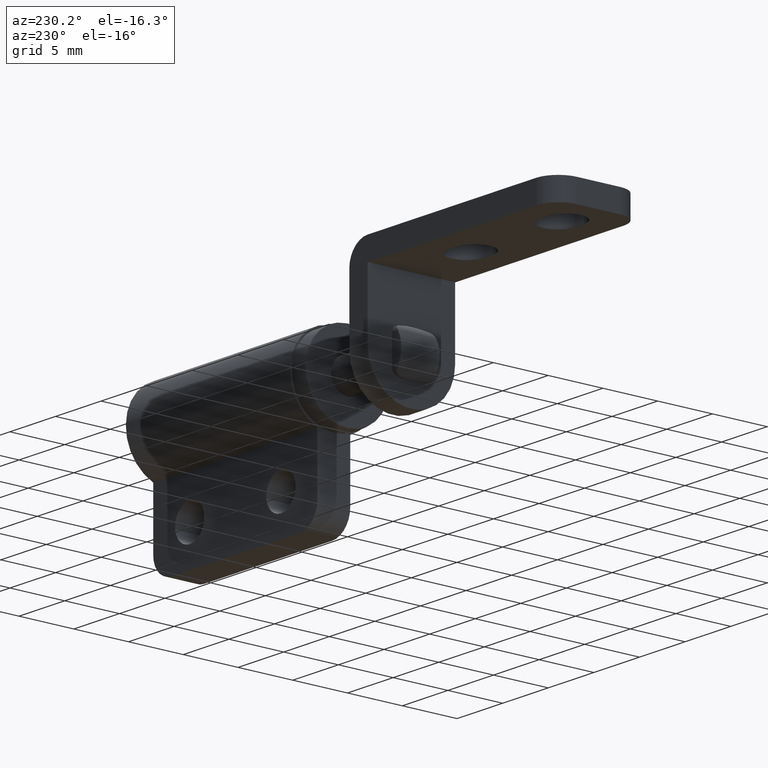
[diagram: clean part render]
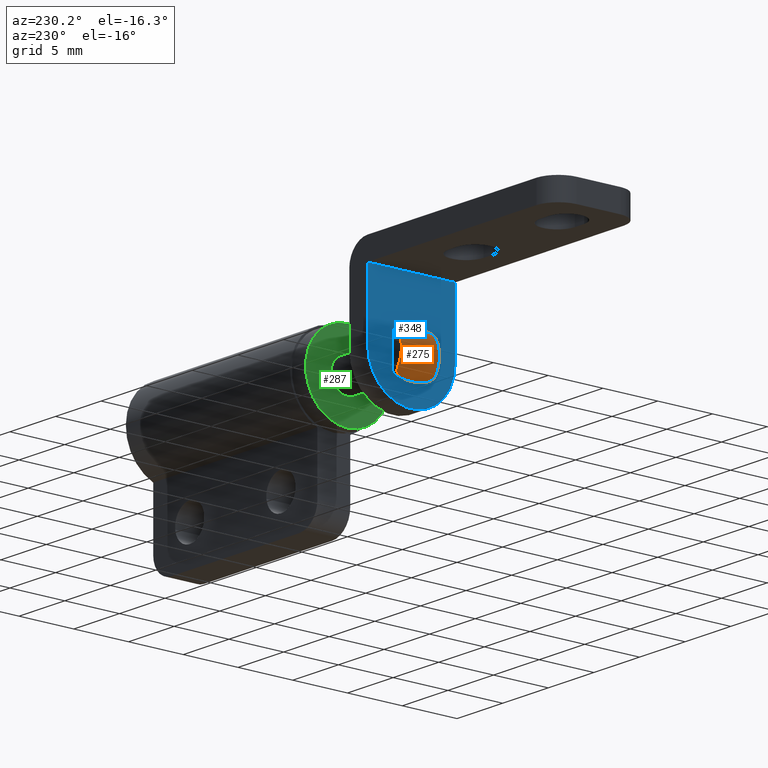
[diagram: same view with three faces highlighted in distinct colors, each labeled with its STEP entity id]
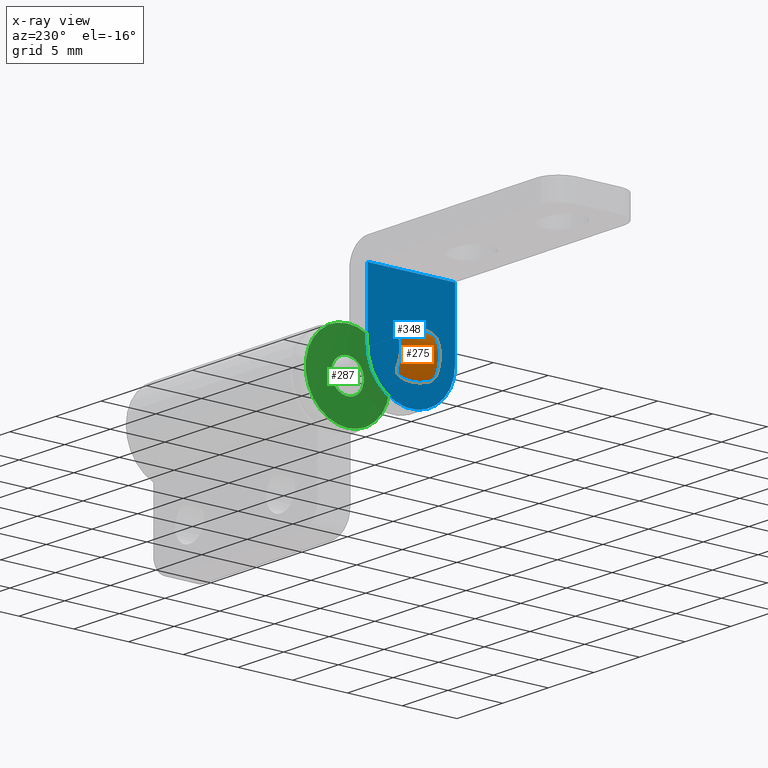
[diagram: x-ray of the same camera — body ghosted, the three highlighted faces saturated]
A machine part, auxiliary view with three faces highlighted in distinct colors.
The next image is the same camera in x-ray (body ghosted, the three faces saturated) — at least one of them is partly hidden behind the body in this view.
Their STEP definitions:

[orange] entity #275 — the highlighted cylindrical surface (edge-blend (fillet) strip) has radius 2.5 mm, axis along (0, 1, 0).
#275=ADVANCED_FACE('',(#512),#511,.T.);
#511=CYLINDRICAL_SURFACE('',#1421,2.50000000000E+00);
#512=FACE_OUTER_BOUND('',#1422,.T.);
#1418=CARTESIAN_POINT('',(-5.00000000000E-01,1.83968750000E+00,5.97723379236E-16));
#1419=DIRECTION('',(3.91300766820E-17,1.00000000000E+00,6.04493308105E-20));
#1420=DIRECTION('',(5.68723184480E-01,-2.22044604925E-17,-8.22528990027E-01));
#1421=AXIS2_PLACEMENT_3D('',#1418,#1419,#1420);
#1422=EDGE_LOOP('',(#1985,#1986,#1987,#1988,#1989,#1990,#1991,#1992,#1993));
#1985=ORIENTED_EDGE('',*,*,#2461,.F.);
#1986=ORIENTED_EDGE('',*,*,#2462,.F.);
#1987=ORIENTED_EDGE('',*,*,#2463,.F.);
#1988=ORIENTED_EDGE('',*,*,#2464,.F.);
#1989=ORIENTED_EDGE('',*,*,#2465,.F.);
#1990=ORIENTED_EDGE('',*,*,#2466,.F.);
#1991=ORIENTED_EDGE('',*,*,#2467,.F.);
#1992=ORIENTED_EDGE('',*,*,#2468,.F.);
#1993=ORIENTED_EDGE('',*,*,#2469,.F.);
#2461=EDGE_CURVE('',#2977,#2978,#2979,.T.);
#2462=EDGE_CURVE('',#2985,#2977,#2986,.T.);
#2463=EDGE_CURVE('',#2992,#2985,#2993,.T.);
#2464=EDGE_CURVE('',#2999,#2992,#3000,.T.);
#2465=EDGE_CURVE('',#3006,#2999,#3007,.T.);
#2466=EDGE_CURVE('',#3013,#3006,#3014,.T.);
#2467=EDGE_CURVE('',#3020,#3013,#3021,.T.);
#2468=EDGE_CURVE('',#3027,#3020,#3028,.T.);
#2469=EDGE_CURVE('',#2978,#3027,#3034,.T.);
#2977=VERTEX_POINT('',#4565);
#2978=VERTEX_POINT('',#4566);
#2979=(BOUNDED_CURVE() B_SPLINE_CURVE(3,(#4567,#4568,#4569,#4570,#4571,#4572,#4573,#4574,#4575,#4576,#4577,#4578,#4579,#4580,#4581,#4582),.UNSPECIFIED.,.F.,.F.) B_SPLINE_CURVE_WITH_KNOTS((4,2,2,2,2,2,2,4),(0.00000000000E+00,1.25000000000E-01,2.50000000000E-01,5.00000000000E-01,6.25000000000E-01,7.50000000000E-01,8.75000000000E-01,1.00000000000E+00),.UNSPECIFIED.) CURVE() GEOMETRIC_REPRESENTATION_ITEM() RATIONAL_B_SPLINE_CURVE((1.00000000000E+00,1.00000000000E+00,1.00000000000E+00,1.00000000000E+00,1.00000000000E+00,1.00000000000E+00,1.00000000000E+00,1.00000000000E+00,1.00000000000E+00,1.00000000000E+00,1.00000000000E+00,1.00000000000E+00,1.00000000000E+00,1.00000000000E+00,1.00000000000E+00,1.00000000000E+00)) REPRESENTATION_ITEM('') );
#2985=VERTEX_POINT('',#4583);
#2986=(BOUNDED_CURVE() B_SPLINE_CURVE(3,(#4584,#4585,#4586,#4587),.UNSPECIFIED.,.F.,.F.) B_SPLINE_CURVE_WITH_KNOTS((4,4),(4.99688324863E-01,1.00000000000E+00),.UNSPECIFIED.) CURVE() GEOMETRIC_REPRESENTATION_ITEM() RATIONAL_B_SPLINE_CURVE((1.00000000000E+00,1.00000000000E+00,1.00000000000E+00,1.00000000000E+00)) REPRESENTATION_ITEM('') );
#2992=VERTEX_POINT('',#4588);
#2993=(BOUNDED_CURVE() B_SPLINE_CURVE(3,(#4589,#4590,#4591,#4592,#4593,#4594,#4595,#4596,#4597,#4598),.UNSPECIFIED.,.F.,.F.) B_SPLINE_CURVE_WITH_KNOTS((4,2,2,2,4),(2.67062268000E-07,2.50000000000E-01,3.75000000000E-01,4.37500000000E-01,4.99688324918E-01),.UNSPECIFIED.) CURVE() GEOMETRIC_REPRESENTATION_ITEM() RATIONAL_B_SPLINE_CURVE((1.00000000000E+00,1.00000000000E+00,1.00000000000E+00,1.00000000000E+00,1.00000000000E+00,1.00000000000E+00,1.00000000000E+00,1.00000000000E+00,1.00000000000E+00,1.00000000000E+00)) REPRESENTATION_ITEM('') );
#2999=VERTEX_POINT('',#4599);
#3000=(BOUNDED_CURVE() B_SPLINE_CURVE(3,(#4600,#4601,#4602,#4603,#4604,#4605,#4606,#4607,#4608,#4609,#4610,#4611,#4612,#4613,#4614,#4615),.UNSPECIFIED.,.F.,.F.) B_SPLINE_CURVE_WITH_KNOTS((4,2,2,2,2,2,2,4),(0.00000000000E+00,2.50000000000E-01,3.75000000000E-01,5.00000000000E-01,6.25000000000E-01,7.50000000000E-01,8.75000000000E-01,1.00000000000E+00),.UNSPECIFIED.) CURVE() GEOMETRIC_REPRESENTATION_ITEM() RATIONAL_B_SPLINE_CURVE((1.00000000000E+00,1.00000000000E+00,1.00000000000E+00,1.00000000000E+00,1.00000000000E+00,1.00000000000E+00,1.00000000000E+00,1.00000000000E+00,1.00000000000E+00,1.00000000000E+00,1.00000000000E+00,1.00000000000E+00,1.00000000000E+00,1.00000000000E+00,1.00000000000E+00,1.00000000000E+00)) REPRESENTATION_ITEM('') );
#3006=VERTEX_POINT('',#4616);
#3007=CIRCLE('',#4620,2.50000000000E+00);
#3013=VERTEX_POINT('',#4621);
#3014=(BOUNDED_CURVE() B_SPLINE_CURVE(3,(#4622,#4623,#4624,#4625,#4626,#4627,#4628,#4629,#4630,#4631,#4632,#4633,#4634,#4635,#4636,#4637),.UNSPECIFIED.,.F.,.F.) B_SPLINE_CURVE_WITH_KNOTS((4,2,2,2,2,2,2,4),(0.00000000000E+00,1.25000000000E-01,2.50000000000E-01,5.00000000000E-01,6.25000000000E-01,7.50000000000E-01,8.75000000000E-01,1.00000000000E+00),.UNSPECIFIED.) CURVE() GEOMETRIC_REPRESENTATION_ITEM() RATIONAL_B_SPLINE_CURVE((1.00000000000E+00,1.00000000000E+00,1.00000000000E+00,1.00000000000E+00,1.00000000000E+00,1.00000000000E+00,1.00000000000E+00,1.00000000000E+00,1.00000000000E+00,1.00000000000E+00,1.00000000000E+00,1.00000000000E+00,1.00000000000E+00,1.00000000000E+00,1.00000000000E+00,1.00000000000E+00)) REPRESENTATION_ITEM('') );
#3020=VERTEX_POINT('',#4638);
#3021=(BOUNDED_CURVE() B_SPLINE_CURVE(3,(#4639,#4640,#4641,#4642,#4643,#4644,#4645,#4646,#4647,#4648,#4649,#4650,#4651,#4652,#4653,#4654),.UNSPECIFIED.,.F.,.F.) B_SPLINE_CURVE_WITH_KNOTS((4,2,2,2,2,2,2,4),(0.00000000000E+00,2.50000000000E-01,3.75000000000E-01,4.37500000000E-01,5.00000000000E-01,7.50000000000E-01,8.75000000000E-01,1.00000000000E+00),.UNSPECIFIED.) CURVE() GEOMETRIC_REPRESENTATION_ITEM() RATIONAL_B_SPLINE_CURVE((1.00000000000E+00,1.00000000000E+00,1.00000000000E+00,1.00000000000E+00,1.00000000000E+00,1.00000000000E+00,1.00000000000E+00,1.00000000000E+00,1.00000000000E+00,1.00000000000E+00,1.00000000000E+00,1.00000000000E+00,1.00000000000E+00,1.00000000000E+00,1.00000000000E+00,1.00000000000E+00)) REPRESENTATION_ITEM('') );
#3027=VERTEX_POINT('',#4655);
#3028=(BOUNDED_CURVE() B_SPLINE_CURVE(3,(#4656,#4657,#4658,#4659,#4660,#4661,#4662,#4663,#4664,#4665,#4666,#4667,#4668,#4669,#4670,#4671),.UNSPECIFIED.,.F.,.F.) B_SPLINE_CURVE_WITH_KNOTS((4,2,2,2,2,2,2,4),(0.00000000000E+00,2.50000000000E-01,3.75000000000E-01,5.00000000000E-01,6.25000000000E-01,7.50000000000E-01,8.75000000000E-01,1.00000000000E+00),.UNSPECIFIED.) CURVE() GEOMETRIC_REPRESENTATION_ITEM() RATIONAL_B_SPLINE_CURVE((1.00000000000E+00,1.00000000000E+00,1.00000000000E+00,1.00000000000E+00,1.00000000000E+00,1.00000000000E+00,1.00000000000E+00,1.00000000000E+00,1.00000000000E+00,1.00000000000E+00,1.00000000000E+00,1.00000000000E+00,1.00000000000E+00,1.00000000000E+00,1.00000000000E+00,1.00000000000E+00)) REPRESENTATION_ITEM('') );
#3034=CIRCLE('',#4675,2.50000000000E+00);
#4565=CARTESIAN_POINT('',(-2.23158090523E+00,1.38888822662E+00,-1.80322698755E+00));
#4566=CARTESIAN_POINT('',(-2.62130079653E+00,1.75000000000E+00,-1.32290700000E+00));
#4567=CARTESIAN_POINT('',(-2.23158090523E+00,1.38888822662E+00,-1.80322698755E+00));
#4568=CARTESIAN_POINT('',(-2.24045058317E+00,1.41834361737E+00,-1.79470974318E+00));
#4569=CARTESIAN_POINT('',(-2.25155913874E+00,1.44566779985E+00,-1.78391796300E+00));
#4570=CARTESIAN_POINT('',(-2.27700765731E+00,1.49701279747E+00,-1.75856949960E+00));
#4571=CARTESIAN_POINT('',(-2.29147229009E+00,1.52117908577E+00,-1.74388362093E+00));
#4572=CARTESIAN_POINT('',(-2.33795125322E+00,1.58821580318E+00,-1.69527174462E+00));
#4573=CARTESIAN_POINT('',(-2.37213748860E+00,1.62495417349E+00,-1.65776148680E+00));
#4574=CARTESIAN_POINT('',(-2.42585273657E+00,1.67072909668E+00,-1.59432113252E+00));
#4575=CARTESIAN_POINT('',(-2.44401181985E+00,1.68420420367E+00,-1.57215430801E+00));
#4576=CARTESIAN_POINT('',(-2.48015241146E+00,1.70744398500E+00,-1.52638379767E+00));
#4577=CARTESIAN_POINT('',(-2.49821367043E+00,1.71727446480E+00,-1.50268756704E+00));
#4578=CARTESIAN_POINT('',(-2.53421789912E+00,1.73331374988E+00,-1.45357668985E+00));
#4579=CARTESIAN_POINT('',(-2.55222829600E+00,1.73952254868E+00,-1.42805428322E+00));
#4580=CARTESIAN_POINT('',(-2.58733452271E+00,1.74784028850E+00,-1.37623194869E+00));
#4581=CARTESIAN_POINT('',(-2.60451150262E+00,1.74999991748E+00,-1.34982893661E+00));
#4582=CARTESIAN_POINT('',(-2.62130079653E+00,1.75000000000E+00,-1.32290700000E+00));
#4583=CARTESIAN_POINT('',(-2.00000000000E+00,0.00000000000E+00,-2.00000000000E+00));
#4584=CARTESIAN_POINT('',(-2.00000000000E+00,0.00000000000E+00,-2.00000000000E+00));
#4585=CARTESIAN_POINT('',(-1.99845599789E+00,4.78586863123E-01,-2.00030378971E+00));
#4586=CARTESIAN_POINT('',(-2.09851783254E+00,9.50004365431E-01,-1.93039280121E+00));
#4587=CARTESIAN_POINT('',(-2.23158090523E+00,1.38888822662E+00,-1.80322698755E+00));
#4588=CARTESIAN_POINT('',(-2.23157827762E+00,-1.38888947282E+00,-1.80322951076E+00));
#4589=CARTESIAN_POINT('',(-2.23157827762E+00,-1.38888947282E+00,-1.80322951076E+00));
#4590=CARTESIAN_POINT('',(-2.16480965008E+00,-1.16715462948E+00,-1.86734527231E+00));
#4591=CARTESIAN_POINT('',(-2.10662194911E+00,-9.41406404543E-01,-1.91613586361E+00));
#4592=CARTESIAN_POINT('',(-2.04462370451E+00,-5.94395502266E-01,-1.96591984295E+00));
#4593=CARTESIAN_POINT('',(-2.02819750750E+00,-4.77318055850E-01,-1.97858810309E+00));
#4594=CARTESIAN_POINT('',(-2.01142653929E+00,-2.99262459232E-01,-1.99139140033E+00));
#4595=CARTESIAN_POINT('',(-2.00714567592E+00,-2.39504076634E-01,-1.99462406067E+00));
#4596=CARTESIAN_POINT('',(-2.00142588014E+00,-1.19423794847E-01,-1.99893303031E+00));
#4597=CARTESIAN_POINT('',(-1.99999998683E+00,-5.95174954610E-02,-2.00000005577E+00));
#4598=CARTESIAN_POINT('',(-2.00000000000E+00,0.00000000000E+00,-2.00000000000E+00));
#4599=CARTESIAN_POINT('',(-2.62130079653E+00,-1.75000000000E+00,-1.32290700000E+00));
#4600=CARTESIAN_POINT('',(-2.62130079653E+00,-1.75000000000E+00,-1.32290700000E+00));
#4601=CARTESIAN_POINT('',(-2.58766887132E+00,-1.75000000000E+00,-1.37683628584E+00));
#4602=CARTESIAN_POINT('',(-2.55284659411E+00,-1.74150949572E+00,-1.42811224478E+00));
#4603=CARTESIAN_POINT('',(-2.49905695803E+00,-1.71770115937E+00,-1.50156325514E+00));
#4604=CARTESIAN_POINT('',(-2.48073910553E+00,-1.70778973690E+00,-1.52562555155E+00));
#4605=CARTESIAN_POINT('',(-2.44439131174E+00,-1.68448161151E+00,-1.57168799529E+00));
#4606=CARTESIAN_POINT('',(-2.42639738502E+00,-1.67114095939E+00,-1.59365829598E+00));
#4607=CARTESIAN_POINT('',(-2.39093693016E+00,-1.64102893010E+00,-1.63557671036E+00));
#4608=CARTESIAN_POINT('',(-2.37346808732E+00,-1.62426169385E+00,-1.65552585162E+00));
#4609=CARTESIAN_POINT('',(-2.33935507350E+00,-1.58687074304E+00,-1.69334622365E+00));
#4610=CARTESIAN_POINT('',(-2.32276827963E+00,-1.56626605217E+00,-1.71114396332E+00));
#4611=CARTESIAN_POINT('',(-2.29193590408E+00,-1.52190616707E+00,-1.74340574168E+00));
#4612=CARTESIAN_POINT('',(-2.27755291179E+00,-1.49802708606E+00,-1.75802128763E+00));
#4613=CARTESIAN_POINT('',(-2.25169227477E+00,-1.44603209125E+00,-1.78379017166E+00));
#4614=CARTESIAN_POINT('',(-2.24043696184E+00,-1.41830820515E+00,-1.79472282591E+00));
#4615=CARTESIAN_POINT('',(-2.23157827762E+00,-1.38888947282E+00,-1.80322951076E+00));
#4616=CARTESIAN_POINT('',(-2.62131077453E+00,-1.75000000000E+00,1.32289100000E+00));
#4617=CARTESIAN_POINT('',(-5.00000000000E-01,-1.75000000000E+00,-4.43852633548E-14));
#4618=DIRECTION('',(1.83311083227E-14,-1.00000000000E+00,1.12671113962E-14));
#4619=DIRECTION('',(8.48524309810E-01,9.59232693276E-15,-5.29156400000E-01));
#4620=AXIS2_PLACEMENT_3D('',#4617,#4618,#4619);
#4621=CARTESIAN_POINT('',(-2.23158714817E+00,-1.38888627848E+00,1.80322099264E+00));
#4622=CARTESIAN_POINT('',(-2.23158714817E+00,-1.38888627848E+00,1.80322099264E+00));
#4623=CARTESIAN_POINT('',(-2.24045671817E+00,-1.41834216628E+00,1.79470377069E+00));
#4624=CARTESIAN_POINT('',(-2.25156525531E+00,-1.44566679792E+00,1.78391191054E+00));
#4625=CARTESIAN_POINT('',(-2.27701386676E+00,-1.49701262130E+00,1.75856312526E+00));
#4626=CARTESIAN_POINT('',(-2.29147862444E+00,-1.52117930377E+00,1.74387698911E+00));
#4627=CARTESIAN_POINT('',(-2.33795801615E+00,-1.58821694770E+00,1.69526422446E+00));
#4628=CARTESIAN_POINT('',(-2.37214467802E+00,-1.62495574064E+00,1.65775316058E+00));
#4629=CARTESIAN_POINT('',(-2.42586068594E+00,-1.67073102534E+00,1.59431127060E+00));
#4630=CARTESIAN_POINT('',(-2.44401995362E+00,-1.68420613657E+00,1.57214398909E+00));
#4631=CARTESIAN_POINT('',(-2.48016098364E+00,-1.70744588018E+00,1.52637242553E+00));
#4632=CARTESIAN_POINT('',(-2.49822246794E+00,-1.71727629175E+00,1.50267563115E+00));
#4633=CARTESIAN_POINT('',(-2.53422715645E+00,-1.73331531615E+00,1.45356353827E+00));
#4634=CARTESIAN_POINT('',(-2.55223774958E+00,-1.73952390232E+00,1.42804052929E+00));
#4635=CARTESIAN_POINT('',(-2.58734426144E+00,-1.74784106935E+00,1.37621708619E+00));
#4636=CARTESIAN_POINT('',(-2.60452136881E+00,-1.75000034844E+00,1.34981351081E+00));
#4637=CARTESIAN_POINT('',(-2.62131077453E+00,-1.75000000000E+00,1.32289100000E+00));
#4638=CARTESIAN_POINT('',(-2.23158721128E+00,1.38888648806E+00,1.80322093203E+00));
#4639=CARTESIAN_POINT('',(-2.23158721128E+00,1.38888648806E+00,1.80322093203E+00));
#4640=CARTESIAN_POINT('',(-2.16481977980E+00,1.16715152391E+00,1.86733599882E+00));
#4641=CARTESIAN_POINT('',(-2.10663331699E+00,9.41403465347E-01,1.91612608535E+00));
#4642=CARTESIAN_POINT('',(-2.04463637628E+00,5.94393080922E-01,1.96590969087E+00));
#4643=CARTESIAN_POINT('',(-2.02821052930E+00,4.77315955915E-01,1.97857788231E+00));
#4644=CARTESIAN_POINT('',(-2.01143983758E+00,2.99260972589E-01,1.99138119956E+00));
#4645=CARTESIAN_POINT('',(-2.00715902481E+00,2.39502816328E-01,1.99461388723E+00));
#4646=CARTESIAN_POINT('',(-2.00142493343E+00,1.19122879732E-01,1.99893372939E+00));
#4647=CARTESIAN_POINT('',(-1.99999902956E+00,5.89164794817E-02,2.00000072791E+00));
#4648=CARTESIAN_POINT('',(-2.00007041526E+00,-2.40141709812E-01,1.99994718790E+00));
#4649=CARTESIAN_POINT('',(-2.02350831356E+00,-4.75114514799E-01,1.98285372814E+00));
#4650=CARTESIAN_POINT('',(-2.08526350339E+00,-8.22290586891E-01,1.93329673020E+00));
#4651=CARTESIAN_POINT('',(-2.11019149827E+00,-9.37143655972E-01,1.91276891588E+00));
#4652=CARTESIAN_POINT('',(-2.16674447587E+00,-1.16533365265E+00,1.86369644493E+00));
#4653=CARTESIAN_POINT('',(-2.19818007512E+00,-1.27794121629E+00,1.83530095321E+00));
#4654=CARTESIAN_POINT('',(-2.23158714817E+00,-1.38888627848E+00,1.80322099264E+00));
#4655=CARTESIAN_POINT('',(-2.62131077453E+00,1.75000000000E+00,1.32289100000E+00));
#4656=CARTESIAN_POINT('',(-2.62131077453E+00,1.75000000000E+00,1.32289100000E+00));
#4657=CARTESIAN_POINT('',(-2.58767885599E+00,1.75000071917E+00,1.37682118106E+00));
#4658=CARTESIAN_POINT('',(-2.55285650395E+00,1.74151062105E+00,1.42809803421E+00));
#4659=CARTESIAN_POINT('',(-2.49906663366E+00,1.71770252389E+00,1.50155038192E+00));
#4660=CARTESIAN_POINT('',(-2.48074867586E+00,1.70779111105E+00,1.52561313329E+00));
#4661=CARTESIAN_POINT('',(-2.44440070610E+00,1.68448291894E+00,1.57167638002E+00));
#4662=CARTESIAN_POINT('',(-2.42640668175E+00,1.67114217689E+00,1.59364706408E+00));
#4663=CARTESIAN_POINT('',(-2.39094601819E+00,1.64102984948E+00,1.63556620919E+00));
#4664=CARTESIAN_POINT('',(-2.37347706410E+00,1.62426240546E+00,1.65551569790E+00));
#4665=CARTESIAN_POINT('',(-2.33936382518E+00,1.58687089255E+00,1.69333672208E+00));
#4666=CARTESIAN_POINT('',(-2.32277699895E+00,1.56626594428E+00,1.71113467738E+00));
#4667=CARTESIAN_POINT('',(-2.29194455026E+00,1.52190539185E+00,1.74339685695E+00));
#4668=CARTESIAN_POINT('',(-2.27756152954E+00,1.49802591037E+00,1.75801257498E+00));
#4669=CARTESIAN_POINT('',(-2.25170089758E+00,1.44602990568E+00,1.78378170484E+00));
#4670=CARTESIAN_POINT('',(-2.24044573679E+00,1.41830569431E+00,1.79471431523E+00));
#4671=CARTESIAN_POINT('',(-2.23158721128E+00,1.38888648806E+00,1.80322093203E+00));
#4672=CARTESIAN_POINT('',(-5.00000000000E-01,1.75000000000E+00,-9.66083427991E-16));
#4673=DIRECTION('',(-3.15778486522E-13,1.00000000000E+00,-2.19578368938E-13));
#4674=DIRECTION('',(8.48520318611E-01,3.84137166520E-13,5.29162800000E-01));
#4675=AXIS2_PLACEMENT_3D('',#4672,#4673,#4674);

[blue] entity #348 — the highlighted planar face has unit normal (-1, 0, 0).
#348=ADVANCED_FACE('',(#1253,#1254),#1252,.T.);
#1252=PLANE('',#1865);
#1253=FACE_OUTER_BOUND('',#1866,.T.);
#1254=FACE_BOUND('',#1867,.T.);
#1862=CARTESIAN_POINT('',(-2.00000000000E+00,-4.80000006981E+00,7.00000883491E+00));
#1863=DIRECTION('',(-1.00000000000E+00,0.00000000000E+00,0.00000000000E+00));
#1864=DIRECTION('',(0.00000000000E+00,1.00000000000E+00,0.00000000000E+00));
#1865=AXIS2_PLACEMENT_3D('',#1862,#1863,#1864);
#1866=EDGE_LOOP('',(#2350,#2351,#2352,#2353));
#1867=EDGE_LOOP('',(#2354,#2355,#2356,#2357));
#2350=ORIENTED_EDGE('',*,*,#2655,.F.);
#2351=ORIENTED_EDGE('',*,*,#2656,.F.);
#2352=ORIENTED_EDGE('',*,*,#2657,.F.);
#2353=ORIENTED_EDGE('',*,*,#2658,.F.);
#2354=ORIENTED_EDGE('',*,*,#2650,.T.);
#2355=ORIENTED_EDGE('',*,*,#2653,.F.);
#2356=ORIENTED_EDGE('',*,*,#2643,.T.);
#2357=ORIENTED_EDGE('',*,*,#2647,.F.);
#2643=EDGE_CURVE('',#4192,#4193,#4194,.T.);
#2647=EDGE_CURVE('',#4220,#4193,#4221,.T.);
#2650=EDGE_CURVE('',#4220,#4240,#4241,.T.);
#2653=EDGE_CURVE('',#4192,#4240,#4260,.T.);
#2655=EDGE_CURVE('',#4272,#4273,#4274,.T.);
#2656=EDGE_CURVE('',#4280,#4272,#4281,.T.);
#2657=EDGE_CURVE('',#4287,#4280,#4288,.T.);
#2658=EDGE_CURVE('',#4273,#4287,#4294,.T.);
#4192=VERTEX_POINT('',#5480);
#4193=VERTEX_POINT('',#5481);
#4194=CIRCLE('',#5485,1.52500000000E+00);
#4220=VERTEX_POINT('',#5498);
#4221=LINE('',#5499,#5500);
#4240=VERTEX_POINT('',#5509);
#4241=CIRCLE('',#5513,1.52500000000E+00);
#4260=LINE('',#5522,#5523);
#4272=VERTEX_POINT('',#5528);
#4273=VERTEX_POINT('',#5529);
#4274=LINE('',#5530,#5531);
#4280=VERTEX_POINT('',#5533);
#4281=CIRCLE('',#5537,4.00000000000E+00);
#4287=VERTEX_POINT('',#5538);
#4288=LINE('',#5539,#5540);
#4294=LINE('',#5542,#5543);
#5480=CARTESIAN_POINT('',(-2.00000000000E+00,-1.12500000000E+00,-1.02956301410E+00));
#5481=CARTESIAN_POINT('',(-2.00000000000E+00,1.12500000000E+00,-1.02956301410E+00));
#5482=CARTESIAN_POINT('',(-2.00000000000E+00,-1.10454144638E-16,-2.22044604925E-16));
#5483=DIRECTION('',(1.00000000000E+00,0.00000000000E+00,0.00000000000E+00));
#5484=DIRECTION('',(-0.00000000000E+00,7.37704918033E-01,6.75123287934E-01));
#5485=AXIS2_PLACEMENT_3D('',#5482,#5483,#5484);
#5498=CARTESIAN_POINT('',(-2.00000000000E+00,1.12500000000E+00,1.02956301410E+00));
#5499=CARTESIAN_POINT('',(-2.00000000000E+00,1.12500000000E+00,1.02956301410E+00));
#5500=VECTOR('',#5501,2.05912602820E+00);
#5501=DIRECTION('',(0.00000000000E+00,8.35716544109E-14,-1.00000000000E+00));
#5509=CARTESIAN_POINT('',(-2.00000000000E+00,-1.12500000000E+00,1.02956301410E+00));
#5510=CARTESIAN_POINT('',(-2.00000000000E+00,0.00000000000E+00,0.00000000000E+00));
#5511=DIRECTION('',(1.00000000000E+00,0.00000000000E+00,-0.00000000000E+00));
#5512=DIRECTION('',(-0.00000000000E+00,-7.37704918033E-01,-6.75123287934E-01));
#5513=AXIS2_PLACEMENT_3D('',#5510,#5511,#5512);
#5522=CARTESIAN_POINT('',(-2.00000000000E+00,-1.12500000000E+00,-1.02956301410E+00));
#5523=VECTOR('',#5524,2.05912602820E+00);
#5524=DIRECTION('',(0.00000000000E+00,0.00000000000E+00,1.00000000000E+00));
#5528=CARTESIAN_POINT('',(-2.00000000000E+00,4.00000000000E+00,6.98131700000E-07));
#5529=CARTESIAN_POINT('',(-2.00000000000E+00,4.00000000000E+00,6.00000800000E+00));
#5530=CARTESIAN_POINT('',(-2.00000000000E+00,4.00000000000E+00,6.98131700000E-07));
#5531=VECTOR('',#5532,6.00000730187E+00);
#5532=DIRECTION('',(0.00000000000E+00,9.99199506159E-15,1.00000000000E+00));
#5533=CARTESIAN_POINT('',(-2.00000000000E+00,-4.00000000000E+00,-2.44921300000E-16));
#5534=CARTESIAN_POINT('',(-2.00000000000E+00,5.75511886728E-14,-5.78710479674E-14));
#5535=DIRECTION('',(1.00000000000E+00,0.00000000000E+00,0.00000000000E+00));
#5536=DIRECTION('',(0.00000000000E+00,-1.00000000000E+00,1.45289923022E-14));
#5537=AXIS2_PLACEMENT_3D('',#5534,#5535,#5536);
#5538=CARTESIAN_POINT('',(-2.00000000000E+00,-4.00000000000E+00,6.00000800000E+00));
#5539=CARTESIAN_POINT('',(-2.00000000000E+00,-4.00000000000E+00,6.00000800000E+00));
#5540=VECTOR('',#5541,6.00000800000E+00);
#5541=DIRECTION('',(0.00000000000E+00,0.00000000000E+00,-1.00000000000E+00));
#5542=CARTESIAN_POINT('',(-2.00000000000E+00,4.00000000000E+00,6.00000800000E+00));
#5543=VECTOR('',#5544,8.00000000000E+00);
#5544=DIRECTION('',(0.00000000000E+00,-1.00000000000E+00,0.00000000000E+00));

[green] entity #287 — the highlighted planar face has unit normal (-1, 0, 0).
#287=ADVANCED_FACE('',(#634,#635),#633,.T.);
#633=PLANE('',#1515);
#634=FACE_OUTER_BOUND('',#1516,.T.);
#635=FACE_BOUND('',#1517,.T.);
#1512=CARTESIAN_POINT('',(5.00000000705E+00,-7.95471335926E+00,-8.80259047365E+00));
#1513=DIRECTION('',(-1.00000000000E+00,0.00000000000E+00,0.00000000000E+00));
#1514=DIRECTION('',(0.00000000000E+00,0.00000000000E+00,1.00000000000E+00));
#1515=AXIS2_PLACEMENT_3D('',#1512,#1513,#1514);
#1516=EDGE_LOOP('',(#2046));
#1517=EDGE_LOOP('',(#2047,#2048,#2049));
#2046=ORIENTED_EDGE('',*,*,#2495,.T.);
#2047=ORIENTED_EDGE('',*,*,#2496,.F.);
#2048=ORIENTED_EDGE('',*,*,#2497,.F.);
#2049=ORIENTED_EDGE('',*,*,#2498,.F.);
#2495=EDGE_CURVE('',#3204,#3204,#3205,.T.);
#2496=EDGE_CURVE('',#3211,#3212,#3213,.T.);
#2497=EDGE_CURVE('',#3219,#3211,#3220,.T.);
#2498=EDGE_CURVE('',#3212,#3219,#3226,.T.);
#3204=VERTEX_POINT('',#4776);
#3205=CIRCLE('',#4780,3.82721324941E+00);
#3211=VERTEX_POINT('',#4781);
#3212=VERTEX_POINT('',#4782);
#3213=CIRCLE('',#4786,1.50000799994E+00);
#3219=VERTEX_POINT('',#4787);
#3220=CIRCLE('',#4791,1.50000799994E+00);
#3226=CIRCLE('',#4795,1.50000799994E+00);
#4776=CARTESIAN_POINT('',(5.00000001409E+00,-4.68682966267E-16,3.82721324941E+00));
#4777=CARTESIAN_POINT('',(5.00000001409E+00,0.00000000000E+00,0.00000000000E+00));
#4778=DIRECTION('',(-1.00000000000E+00,0.00000000000E+00,-0.00000000000E+00));
#4779=DIRECTION('',(-0.00000000000E+00,-0.00000000000E+00,1.00000000000E+00));
#4780=AXIS2_PLACEMENT_3D('',#4777,#4778,#4779);
#4781=CARTESIAN_POINT('',(5.00000000000E+00,4.73994737565E-01,-1.42314896917E+00));
#4782=CARTESIAN_POINT('',(5.00000000000E+00,-1.49960108653E+00,-3.49368170925E-02));
#4783=CARTESIAN_POINT('',(5.00000000000E+00,-1.00085217891E-11,6.17279560799E-11));
#4784=DIRECTION('',(-1.00000000000E+00,-2.15026055940E-15,1.15611346617E-15));
#4785=DIRECTION('',(2.12275010968E-15,-9.99728725833E-01,-2.32910872180E-02));
#4786=AXIS2_PLACEMENT_3D('',#4783,#4784,#4785);
#4787=CARTESIAN_POINT('',(5.00000000000E+00,-4.74210670858E-01,1.42307703225E+00));
#4788=CARTESIAN_POINT('',(5.00000000000E+00,-1.00085217891E-11,6.17279560799E-11));
#4789=DIRECTION('',(-1.00000000000E+00,-2.15026055940E-15,1.15611346617E-15));
#4790=DIRECTION('',(2.12275010968E-15,-9.99728725833E-01,-2.32910872180E-02));
#4791=AXIS2_PLACEMENT_3D('',#4788,#4789,#4790);
#4792=CARTESIAN_POINT('',(5.00000000000E+00,-1.00085217891E-11,6.17279560799E-11));
#4793=DIRECTION('',(-1.00000000000E+00,-2.15026055940E-15,1.15611346617E-15));
#4794=DIRECTION('',(2.12275010968E-15,-9.99728725833E-01,-2.32910872180E-02));
#4795=AXIS2_PLACEMENT_3D('',#4792,#4793,#4794);